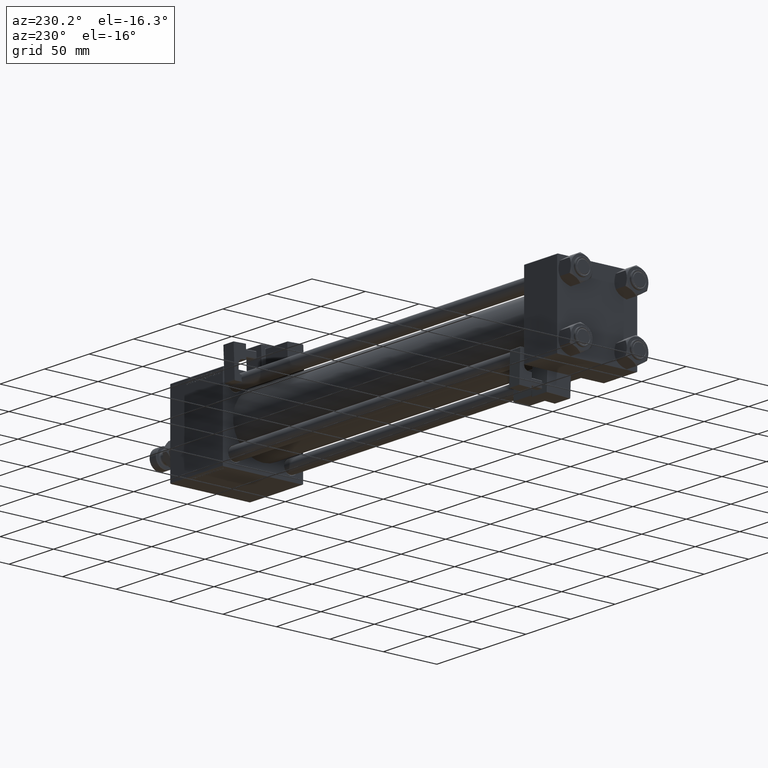
[diagram: clean part render]
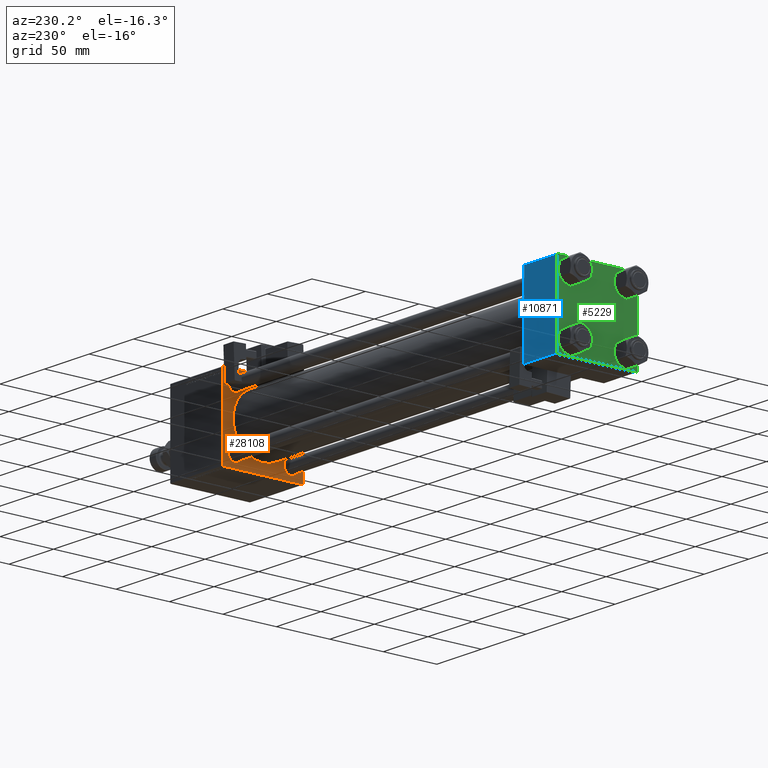
[diagram: same view with three faces highlighted in distinct colors, each labeled with its STEP entity id]
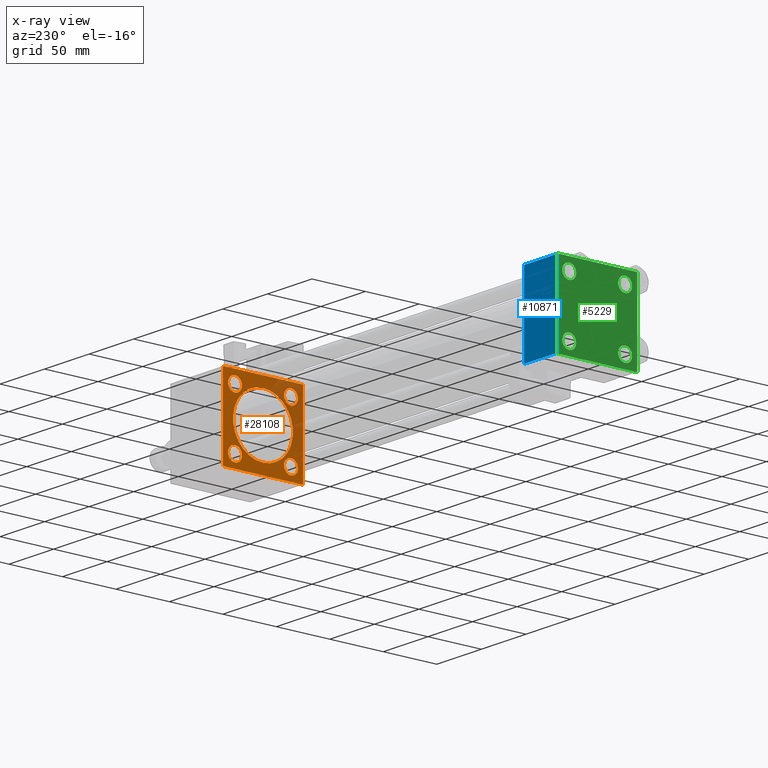
[diagram: x-ray of the same camera — body ghosted, the three highlighted faces saturated]
A machine part, auxiliary view with three faces highlighted in distinct colors.
The next image is the same camera in x-ray (body ghosted, the three faces saturated) — at least one of them is partly hidden behind the body in this view.
Their STEP definitions:

[orange] entity #28108 — the highlighted planar face has unit normal (-1, 0, 0).
#27 = CARTESIAN_POINT ( 'NONE',  ( 375.0000000000000000, 37.50000000000000000, -37.50000000000000000 ) ) ;
#260 = CIRCLE ( 'NONE', #17736, 28.00000000000000000 ) ;
#607 = CARTESIAN_POINT ( 'NONE',  ( 375.0000000000000000, -36.99999999999990052, -37.50000000000000000 ) ) ;
#745 = AXIS2_PLACEMENT_3D ( 'NONE', #33806, #9123, #50539 ) ;
#1143 = EDGE_CURVE ( 'NONE', #10367, #8762, #22745, .T. ) ;
#1572 = FACE_BOUND ( 'NONE', #21722, .T. ) ;
#2196 = CARTESIAN_POINT ( 'NONE',  ( 375.0000000000000000, 26.14999999999999858, -26.15000000000000213 ) ) ;
#2380 = FACE_BOUND ( 'NONE', #26678, .T. ) ;
#2517 = ORIENTED_EDGE ( 'NONE', *, *, #9772, .T. ) ;
#2803 = CARTESIAN_POINT ( 'NONE',  ( 375.0000000000000000, 37.50000000000000000, 37.49999999999999289 ) ) ;
#3143 = DIRECTION ( 'NONE',  ( 0.000000000000000000, 0.7071067811865474617, -0.7071067811865474617 ) ) ;
#4660 = DIRECTION ( 'NONE',  ( 1.000000000000000000, 0.000000000000000000, -0.000000000000000000 ) ) ;
#5742 = CARTESIAN_POINT ( 'NONE',  ( 375.0000000000000000, 26.14999999999999858, 26.15000000000000213 ) ) ;
#6031 = ORIENTED_EDGE ( 'NONE', *, *, #49520, .F. ) ;
#6043 = VERTEX_POINT ( 'NONE', #26173 ) ;
#6058 = AXIS2_PLACEMENT_3D ( 'NONE', #31158, #22936, #30623 ) ;
#6253 = AXIS2_PLACEMENT_3D ( 'NONE', #17229, #8739, #42174 ) ;
#7442 = CIRCLE ( 'NONE', #44208, 6.500000000000008882 ) ;
#7893 = CARTESIAN_POINT ( 'NONE',  ( 375.0000000000000000, -2.602085213965210642E-15, 0.000000000000000000 ) ) ;
#8029 = CIRCLE ( 'NONE', #6253, 6.500000000000015987 ) ;
#8739 = DIRECTION ( 'NONE',  ( 1.000000000000000000, 0.000000000000000000, -0.000000000000000000 ) ) ;
#8762 = VERTEX_POINT ( 'NONE', #24302 ) ;
#8919 = AXIS2_PLACEMENT_3D ( 'NONE', #22287, #39021, #14325 ) ;
#9123 = DIRECTION ( 'NONE',  ( 1.000000000000000000, 0.000000000000000000, -0.000000000000000000 ) ) ;
#9772 = EDGE_CURVE ( 'NONE', #24002, #47184, #260, .T. ) ;
#9791 = ORIENTED_EDGE ( 'NONE', *, *, #23378, .T. ) ;
#10061 = FACE_BOUND ( 'NONE', #12803, .T. ) ;
#10242 = CIRCLE ( 'NONE', #15486, 6.500000000000015987 ) ;
#10311 = DIRECTION ( 'NONE',  ( -0.000000000000000000, 0.7071067811865474617, 0.7071067811865474617 ) ) ;
#10367 = VERTEX_POINT ( 'NONE', #607 ) ;
#10410 = VECTOR ( 'NONE', #36245, 1000.000000000000000 ) ;
#10512 = LINE ( 'NONE', #43410, #38872 ) ;
#11607 = DIRECTION ( 'NONE',  ( 1.000000000000000000, 0.000000000000000000, -0.000000000000000000 ) ) ;
#11711 = CARTESIAN_POINT ( 'NONE',  ( 375.0000000000000000, -26.14999999999999147, -32.65000000000002700 ) ) ;
#11854 = CARTESIAN_POINT ( 'NONE',  ( 375.0000000000000000, -36.99999999999994316, 37.49999999999997868 ) ) ;
#12564 = ORIENTED_EDGE ( 'NONE', *, *, #44474, .T. ) ;
#12704 = CARTESIAN_POINT ( 'NONE',  ( 375.0000000000000000, 26.14999999999999858, -32.65000000000001990 ) ) ;
#12803 = EDGE_LOOP ( 'NONE', ( #24810, #30221 ) ) ;
#13192 = CARTESIAN_POINT ( 'NONE',  ( 375.0000000000000000, 8.269258236473784371E-16, -28.00000000000000000 ) ) ;
#13399 = CARTESIAN_POINT ( 'NONE',  ( 375.0000000000000000, -37.50000000000000000, 37.49999999999997868 ) ) ;
#13593 = EDGE_CURVE ( 'NONE', #41227, #50712, #10512, .T. ) ;
#13900 = FACE_BOUND ( 'NONE', #16496, .T. ) ;
#14080 = DIRECTION ( 'NONE',  ( 0.000000000000000000, -1.000000000000000000, -1.850371707708594316E-16 ) ) ;
#14195 = VECTOR ( 'NONE', #38360, 1000.000000000000000 ) ;
#14325 = DIRECTION ( 'NONE',  ( 0.000000000000000000, 0.000000000000000000, 1.000000000000000000 ) ) ;
#14338 = EDGE_CURVE ( 'NONE', #31263, #50712, #22648, .T. ) ;
#14354 = CARTESIAN_POINT ( 'NONE',  ( 375.0000000000000000, -26.14999999999999147, -19.64999999999999503 ) ) ;
#14705 = FACE_OUTER_BOUND ( 'NONE', #15614, .T. ) ;
#14790 = DIRECTION ( 'NONE',  ( 0.000000000000000000, 0.000000000000000000, 1.000000000000000000 ) ) ;
#14977 = EDGE_CURVE ( 'NONE', #38663, #39060, #27926, .T. ) ;
#15478 = DIRECTION ( 'NONE',  ( 1.000000000000000000, 0.000000000000000000, -0.000000000000000000 ) ) ;
#15486 = AXIS2_PLACEMENT_3D ( 'NONE', #28637, #15478, #40163 ) ;
#15557 = DIRECTION ( 'NONE',  ( 1.000000000000000000, 0.000000000000000000, 0.000000000000000000 ) ) ;
#15614 = EDGE_LOOP ( 'NONE', ( #17398, #53781, #6031, #38833, #40554, #21736, #41858, #46208 ) ) ;
#15979 = DIRECTION ( 'NONE',  ( 0.000000000000000000, 0.000000000000000000, 1.000000000000000000 ) ) ;
#16496 = EDGE_LOOP ( 'NONE', ( #2517, #25565 ) ) ;
#16734 = DIRECTION ( 'NONE',  ( 0.000000000000000000, -1.000000000000000000, 0.000000000000000000 ) ) ;
#17229 = CARTESIAN_POINT ( 'NONE',  ( 375.0000000000000000, -26.14999999999999147, -26.15000000000000924 ) ) ;
#17398 = ORIENTED_EDGE ( 'NONE', *, *, #26907, .T. ) ;
#17576 = AXIS2_PLACEMENT_3D ( 'NONE', #40951, #11607, #24488 ) ;
#17736 = AXIS2_PLACEMENT_3D ( 'NONE', #21823, #42391, #47043 ) ;
#18246 = VECTOR ( 'NONE', #44116, 1000.000000000000114 ) ;
#18588 = LINE ( 'NONE', #13399, #14195 ) ;
#18759 = EDGE_CURVE ( 'NONE', #43875, #45186, #7442, .T. ) ;
#19479 = CARTESIAN_POINT ( 'NONE',  ( 375.0000000000000000, -2.602085213965210642E-15, 28.00000000000000000 ) ) ;
#19587 = VERTEX_POINT ( 'NONE', #14354 ) ;
#19885 = CIRCLE ( 'NONE', #51408, 28.00000000000000000 ) ;
#19995 = CIRCLE ( 'NONE', #745, 6.500000000000015987 ) ;
#20093 = CARTESIAN_POINT ( 'NONE',  ( 375.0000000000000000, 26.14999999999999858, 26.15000000000000213 ) ) ;
#21722 = EDGE_LOOP ( 'NONE', ( #42686, #22268 ) ) ;
#21736 = ORIENTED_EDGE ( 'NONE', *, *, #53788, .T. ) ;
#21823 = CARTESIAN_POINT ( 'NONE',  ( 375.0000000000000000, -2.602085213965210642E-15, 0.000000000000000000 ) ) ;
#22268 = ORIENTED_EDGE ( 'NONE', *, *, #33489, .T. ) ;
#22287 = CARTESIAN_POINT ( 'NONE',  ( 375.0000000000000000, 26.14999999999999858, -26.15000000000000213 ) ) ;
#22648 = LINE ( 'NONE', #52273, #24891 ) ;
#22745 = LINE ( 'NONE', #31242, #18246 ) ;
#22936 = DIRECTION ( 'NONE',  ( -1.000000000000000000, -0.000000000000000000, 0.000000000000000000 ) ) ;
#23378 = EDGE_CURVE ( 'NONE', #48382, #27881, #10242, .T. ) ;
#24002 = VERTEX_POINT ( 'NONE', #19479 ) ;
#24302 = CARTESIAN_POINT ( 'NONE',  ( 375.0000000000000000, -37.50000000000000711, -36.99999999999989342 ) ) ;
#24488 = DIRECTION ( 'NONE',  ( 0.000000000000000000, 0.000000000000000000, 1.000000000000000000 ) ) ;
#24810 = ORIENTED_EDGE ( 'NONE', *, *, #48116, .T. ) ;
#24891 = VECTOR ( 'NONE', #10311, 1000.000000000000114 ) ;
#25201 = ORIENTED_EDGE ( 'NONE', *, *, #26116, .T. ) ;
#25565 = ORIENTED_EDGE ( 'NONE', *, *, #30748, .T. ) ;
#26116 = EDGE_CURVE ( 'NONE', #49632, #19587, #19995, .T. ) ;
#26173 = CARTESIAN_POINT ( 'NONE',  ( 375.0000000000000000, 37.50000000000000000, 36.99999999999993605 ) ) ;
#26678 = EDGE_LOOP ( 'NONE', ( #9791, #12564 ) ) ;
#26907 = EDGE_CURVE ( 'NONE', #39060, #10367, #38648, .T. ) ;
#27881 = VERTEX_POINT ( 'NONE', #40808 ) ;
#27926 = LINE ( 'NONE', #28479, #30180 ) ;
#28108 = ADVANCED_FACE ( 'NONE', ( #2380, #1572, #10061, #51751, #13900, #14705 ), #39128, .T. ) ;
#28325 = CARTESIAN_POINT ( 'NONE',  ( 375.0000000000000000, -37.50000000000000000, 36.99999999999992184 ) ) ;
#28479 = CARTESIAN_POINT ( 'NONE',  ( 375.0000000000000000, 37.25000000000022027, -37.24999999999970868 ) ) ;
#28637 = CARTESIAN_POINT ( 'NONE',  ( 375.0000000000000000, -26.14999999999999147, 26.15000000000000924 ) ) ;
#29520 = CARTESIAN_POINT ( 'NONE',  ( 375.0000000000000000, 36.99999999999994316, -37.50000000000000000 ) ) ;
#29664 = DIRECTION ( 'NONE',  ( 1.000000000000000000, 0.000000000000000000, -0.000000000000000000 ) ) ;
#30180 = VECTOR ( 'NONE', #53706, 1000.000000000000000 ) ;
#30221 = ORIENTED_EDGE ( 'NONE', *, *, #46075, .T. ) ;
#30409 = DIRECTION ( 'NONE',  ( 0.000000000000000000, 0.000000000000000000, 1.000000000000000000 ) ) ;
#30623 = DIRECTION ( 'NONE',  ( 0.000000000000000000, 0.000000000000000000, 1.000000000000000000 ) ) ;
#30748 = EDGE_CURVE ( 'NONE', #47184, #24002, #19885, .T. ) ;
#31056 = VECTOR ( 'NONE', #3143, 1000.000000000000114 ) ;
#31118 = VERTEX_POINT ( 'NONE', #33583 ) ;
#31158 = CARTESIAN_POINT ( 'NONE',  ( 375.0000000000000000, 0.000000000000000000, 0.000000000000000000 ) ) ;
#31242 = CARTESIAN_POINT ( 'NONE',  ( 375.0000000000000000, -37.24999999999995026, -37.24999999999995026 ) ) ;
#31263 = VERTEX_POINT ( 'NONE', #28325 ) ;
#33466 = CIRCLE ( 'NONE', #8919, 6.500000000000015987 ) ;
#33489 = EDGE_CURVE ( 'NONE', #45186, #43875, #47003, .T. ) ;
#33583 = CARTESIAN_POINT ( 'NONE',  ( 375.0000000000000000, 26.14999999999999858, -19.64999999999998792 ) ) ;
#33806 = CARTESIAN_POINT ( 'NONE',  ( 375.0000000000000000, -26.14999999999999147, -26.15000000000000924 ) ) ;
#34884 = CARTESIAN_POINT ( 'NONE',  ( 375.0000000000000000, 37.50000000000000000, -36.99999999999993605 ) ) ;
#36174 = DIRECTION ( 'NONE',  ( 1.000000000000000000, 0.000000000000000000, -0.000000000000000000 ) ) ;
#36245 = DIRECTION ( 'NONE',  ( 0.000000000000000000, 0.000000000000000000, -1.000000000000000000 ) ) ;
#36475 = VERTEX_POINT ( 'NONE', #12704 ) ;
#36650 = CARTESIAN_POINT ( 'NONE',  ( 375.0000000000000000, 26.14999999999999858, 19.64999999999999147 ) ) ;
#37820 = EDGE_CURVE ( 'NONE', #6043, #38663, #49954, .T. ) ;
#38360 = DIRECTION ( 'NONE',  ( 0.000000000000000000, -9.251858538542972814E-17, -1.000000000000000000 ) ) ;
#38648 = LINE ( 'NONE', #27, #48014 ) ;
#38663 = VERTEX_POINT ( 'NONE', #34884 ) ;
#38833 = ORIENTED_EDGE ( 'NONE', *, *, #14338, .T. ) ;
#38872 = VECTOR ( 'NONE', #14080, 1000.000000000000000 ) ;
#39021 = DIRECTION ( 'NONE',  ( 1.000000000000000000, 0.000000000000000000, -0.000000000000000000 ) ) ;
#39060 = VERTEX_POINT ( 'NONE', #29520 ) ;
#39128 = PLANE ( 'NONE',  #6058 ) ;
#40163 = DIRECTION ( 'NONE',  ( 0.000000000000000000, 0.000000000000000000, 1.000000000000000000 ) ) ;
#40554 = ORIENTED_EDGE ( 'NONE', *, *, #13593, .F. ) ;
#40808 = CARTESIAN_POINT ( 'NONE',  ( 375.0000000000000000, -26.14999999999999147, 19.64999999999999147 ) ) ;
#40856 = CARTESIAN_POINT ( 'NONE',  ( 375.0000000000000000, 36.99999999999994316, 37.49999999999999289 ) ) ;
#40951 = CARTESIAN_POINT ( 'NONE',  ( 375.0000000000000000, -26.14999999999999147, 26.15000000000000924 ) ) ;
#41227 = VERTEX_POINT ( 'NONE', #40856 ) ;
#41858 = ORIENTED_EDGE ( 'NONE', *, *, #37820, .T. ) ;
#42174 = DIRECTION ( 'NONE',  ( 0.000000000000000000, 0.000000000000000000, 1.000000000000000000 ) ) ;
#42187 = CIRCLE ( 'NONE', #17576, 6.500000000000015987 ) ;
#42271 = CARTESIAN_POINT ( 'NONE',  ( 375.0000000000000000, 26.14999999999999858, 32.65000000000001990 ) ) ;
#42391 = DIRECTION ( 'NONE',  ( 1.000000000000000000, 0.000000000000000000, 0.000000000000000000 ) ) ;
#42686 = ORIENTED_EDGE ( 'NONE', *, *, #18759, .T. ) ;
#43410 = CARTESIAN_POINT ( 'NONE',  ( 375.0000000000000000, 37.50000000000000000, 37.49999999999999289 ) ) ;
#43875 = VERTEX_POINT ( 'NONE', #42271 ) ;
#44116 = DIRECTION ( 'NONE',  ( 0.000000000000000000, -0.7071067811865474617, 0.7071067811865474617 ) ) ;
#44208 = AXIS2_PLACEMENT_3D ( 'NONE', #20093, #29664, #15979 ) ;
#44474 = EDGE_CURVE ( 'NONE', #27881, #48382, #42187, .T. ) ;
#44715 = CIRCLE ( 'NONE', #46485, 6.500000000000015987 ) ;
#44882 = DIRECTION ( 'NONE',  ( 0.000000000000000000, 0.000000000000000000, -1.000000000000000000 ) ) ;
#45186 = VERTEX_POINT ( 'NONE', #36650 ) ;
#45347 = CARTESIAN_POINT ( 'NONE',  ( 375.0000000000000000, 37.24999999999996447, 37.24999999999996447 ) ) ;
#46075 = EDGE_CURVE ( 'NONE', #36475, #31118, #44715, .T. ) ;
#46208 = ORIENTED_EDGE ( 'NONE', *, *, #14977, .T. ) ;
#46485 = AXIS2_PLACEMENT_3D ( 'NONE', #2196, #36174, #14790 ) ;
#47003 = CIRCLE ( 'NONE', #47903, 6.500000000000008882 ) ;
#47043 = DIRECTION ( 'NONE',  ( 0.000000000000000000, 0.000000000000000000, -1.000000000000000000 ) ) ;
#47184 = VERTEX_POINT ( 'NONE', #13192 ) ;
#47323 = EDGE_CURVE ( 'NONE', #19587, #49632, #8029, .T. ) ;
#47719 = CARTESIAN_POINT ( 'NONE',  ( 375.0000000000000000, -26.14999999999999147, 32.65000000000003411 ) ) ;
#47903 = AXIS2_PLACEMENT_3D ( 'NONE', #5742, #4660, #30409 ) ;
#47919 = ORIENTED_EDGE ( 'NONE', *, *, #47323, .T. ) ;
#48014 = VECTOR ( 'NONE', #16734, 1000.000000000000000 ) ;
#48116 = EDGE_CURVE ( 'NONE', #31118, #36475, #33466, .T. ) ;
#48382 = VERTEX_POINT ( 'NONE', #47719 ) ;
#49520 = EDGE_CURVE ( 'NONE', #31263, #8762, #18588, .T. ) ;
#49632 = VERTEX_POINT ( 'NONE', #11711 ) ;
#49954 = LINE ( 'NONE', #2803, #10410 ) ;
#50539 = DIRECTION ( 'NONE',  ( 0.000000000000000000, 0.000000000000000000, 1.000000000000000000 ) ) ;
#50712 = VERTEX_POINT ( 'NONE', #11854 ) ;
#51408 = AXIS2_PLACEMENT_3D ( 'NONE', #7893, #15557, #44882 ) ;
#51751 = FACE_BOUND ( 'NONE', #53680, .T. ) ;
#52273 = CARTESIAN_POINT ( 'NONE',  ( 375.0000000000000000, -37.24999999999995737, 37.24999999999995737 ) ) ;
#53051 = LINE ( 'NONE', #45347, #31056 ) ;
#53680 = EDGE_LOOP ( 'NONE', ( #47919, #25201 ) ) ;
#53706 = DIRECTION ( 'NONE',  ( -0.000000000000000000, -0.7071067811865426878, -0.7071067811865524577 ) ) ;
#53781 = ORIENTED_EDGE ( 'NONE', *, *, #1143, .T. ) ;
#53788 = EDGE_CURVE ( 'NONE', #41227, #6043, #53051, .T. ) ;

[blue] entity #10871 — the highlighted planar face has unit normal (0, 1, 0).
#23 = VECTOR ( 'NONE', #39372, 1000.000000000000000 ) ;
#1290 = EDGE_CURVE ( 'NONE', #37489, #32717, #22885, .T. ) ;
#2083 = CARTESIAN_POINT ( 'NONE',  ( 37.00000000000000000, 37.49999999999999289, -36.99999999999998579 ) ) ;
#3069 = LINE ( 'NONE', #24440, #5170 ) ;
#3207 = VECTOR ( 'NONE', #31453, 1000.000000000000000 ) ;
#4082 = ORIENTED_EDGE ( 'NONE', *, *, #23066, .T. ) ;
#4243 = VECTOR ( 'NONE', #35506, 1000.000000000000000 ) ;
#5170 = VECTOR ( 'NONE', #12378, 1000.000000000000000 ) ;
#5943 = EDGE_LOOP ( 'NONE', ( #26218, #18892, #39948, #4082 ) ) ;
#10351 = LINE ( 'NONE', #35576, #3207 ) ;
#10763 = AXIS2_PLACEMENT_3D ( 'NONE', #29037, #24915, #41642 ) ;
#10871 = ADVANCED_FACE ( 'NONE', ( #12848 ), #49889, .T. ) ;
#11409 = VERTEX_POINT ( 'NONE', #43325 ) ;
#12378 = DIRECTION ( 'NONE',  ( 0.000000000000000000, 0.000000000000000000, -1.000000000000000000 ) ) ;
#12848 = FACE_OUTER_BOUND ( 'NONE', #5943, .T. ) ;
#18892 = ORIENTED_EDGE ( 'NONE', *, *, #40115, .T. ) ;
#22634 = LINE ( 'NONE', #2083, #23 ) ;
#22885 = LINE ( 'NONE', #26742, #4243 ) ;
#23066 = EDGE_CURVE ( 'NONE', #11409, #37489, #10351, .T. ) ;
#24440 = CARTESIAN_POINT ( 'NONE',  ( 0.000000000000000000, 37.49999999999999289, 37.50000000000000000 ) ) ;
#24915 = DIRECTION ( 'NONE',  ( -0.000000000000000000, 1.000000000000000000, 0.000000000000000000 ) ) ;
#26218 = ORIENTED_EDGE ( 'NONE', *, *, #1290, .T. ) ;
#26742 = CARTESIAN_POINT ( 'NONE',  ( 37.00000000000000000, 37.49999999999999289, 37.50000000000000000 ) ) ;
#29037 = CARTESIAN_POINT ( 'NONE',  ( 37.00000000000000000, 37.49999999999999289, 37.50000000000000000 ) ) ;
#31453 = DIRECTION ( 'NONE',  ( 1.000000000000000000, 0.000000000000000000, 0.000000000000000000 ) ) ;
#32717 = VERTEX_POINT ( 'NONE', #45642 ) ;
#35506 = DIRECTION ( 'NONE',  ( 0.000000000000000000, 0.000000000000000000, -1.000000000000000000 ) ) ;
#35576 = CARTESIAN_POINT ( 'NONE',  ( 37.00000000000000000, 37.49999999999999289, 37.00000000000000000 ) ) ;
#37489 = VERTEX_POINT ( 'NONE', #46153 ) ;
#37799 = VERTEX_POINT ( 'NONE', #40089 ) ;
#37837 = EDGE_CURVE ( 'NONE', #11409, #37799, #3069, .T. ) ;
#39372 = DIRECTION ( 'NONE',  ( -1.000000000000000000, 0.000000000000000000, 0.000000000000000000 ) ) ;
#39948 = ORIENTED_EDGE ( 'NONE', *, *, #37837, .F. ) ;
#40089 = CARTESIAN_POINT ( 'NONE',  ( 0.000000000000000000, 37.49999999999999289, -36.99999999999998579 ) ) ;
#40115 = EDGE_CURVE ( 'NONE', #32717, #37799, #22634, .T. ) ;
#41642 = DIRECTION ( 'NONE',  ( 0.000000000000000000, -0.000000000000000000, 1.000000000000000000 ) ) ;
#43325 = CARTESIAN_POINT ( 'NONE',  ( 0.000000000000000000, 37.49999999999999289, 37.00000000000000000 ) ) ;
#45642 = CARTESIAN_POINT ( 'NONE',  ( 37.00000000000000000, 37.49999999999999289, -36.99999999999998579 ) ) ;
#46153 = CARTESIAN_POINT ( 'NONE',  ( 37.00000000000000000, 37.49999999999999289, 37.00000000000000000 ) ) ;
#49889 = PLANE ( 'NONE',  #10763 ) ;

[green] entity #5229 — the highlighted planar face has unit normal (-1, 0, 0).
#93 = CARTESIAN_POINT ( 'NONE',  ( 0.000000000000000000, 37.24999999999998579, -37.24999999999998579 ) ) ;
#332 = DIRECTION ( 'NONE',  ( 1.000000000000000000, -0.000000000000000000, 0.000000000000000000 ) ) ;
#437 = CIRCLE ( 'NONE', #52054, 6.500000000000015987 ) ;
#610 = VERTEX_POINT ( 'NONE', #48104 ) ;
#1952 = VERTEX_POINT ( 'NONE', #23299 ) ;
#2087 = EDGE_CURVE ( 'NONE', #25575, #38218, #9013, .T. ) ;
#2236 = AXIS2_PLACEMENT_3D ( 'NONE', #35419, #33867, #37981 ) ;
#2682 = DIRECTION ( 'NONE',  ( 1.000000000000000000, -0.000000000000000000, 0.000000000000000000 ) ) ;
#2871 = DIRECTION ( 'NONE',  ( 1.000000000000000000, -0.000000000000000000, 0.000000000000000000 ) ) ;
#3069 = LINE ( 'NONE', #24440, #5170 ) ;
#3521 = AXIS2_PLACEMENT_3D ( 'NONE', #31471, #2682, #35594 ) ;
#3591 = ORIENTED_EDGE ( 'NONE', *, *, #32915, .T. ) ;
#3899 = ORIENTED_EDGE ( 'NONE', *, *, #18275, .T. ) ;
#4457 = EDGE_LOOP ( 'NONE', ( #50734, #45091 ) ) ;
#4480 = VERTEX_POINT ( 'NONE', #31416 ) ;
#4541 = ORIENTED_EDGE ( 'NONE', *, *, #49073, .T. ) ;
#5107 = FACE_BOUND ( 'NONE', #15487, .T. ) ;
#5170 = VECTOR ( 'NONE', #12378, 1000.000000000000000 ) ;
#5229 = ADVANCED_FACE ( 'NONE', ( #42661, #5107, #13600, #13869, #47316 ), #30058, .T. ) ;
#5265 = DIRECTION ( 'NONE',  ( -0.000000000000000000, -0.7071067811865474617, -0.7071067811865474617 ) ) ;
#5381 = VERTEX_POINT ( 'NONE', #20025 ) ;
#6000 = DIRECTION ( 'NONE',  ( 1.000000000000000000, -0.000000000000000000, 0.000000000000000000 ) ) ;
#6530 = VECTOR ( 'NONE', #5265, 1000.000000000000114 ) ;
#6584 = CARTESIAN_POINT ( 'NONE',  ( 0.000000000000000000, 26.14999999999999858, -19.64999999999998792 ) ) ;
#6646 = DIRECTION ( 'NONE',  ( 0.000000000000000000, 9.251858538542971581E-17, -1.000000000000000000 ) ) ;
#6721 = AXIS2_PLACEMENT_3D ( 'NONE', #7097, #27666, #15048 ) ;
#7097 = CARTESIAN_POINT ( 'NONE',  ( 0.000000000000000000, -26.14999999999999147, -26.15000000000000924 ) ) ;
#7527 = DIRECTION ( 'NONE',  ( 0.000000000000000000, 0.000000000000000000, 1.000000000000000000 ) ) ;
#8310 = LINE ( 'NONE', #93, #6530 ) ;
#8784 = CARTESIAN_POINT ( 'NONE',  ( 0.000000000000000000, -26.14999999999999147, 19.64999999999999147 ) ) ;
#9013 = LINE ( 'NONE', #46571, #20919 ) ;
#9285 = CARTESIAN_POINT ( 'NONE',  ( 0.000000000000000000, 26.14999999999999858, 32.65000000000002700 ) ) ;
#9440 = ORIENTED_EDGE ( 'NONE', *, *, #2087, .T. ) ;
#9592 = AXIS2_PLACEMENT_3D ( 'NONE', #24724, #41722, #45562 ) ;
#11409 = VERTEX_POINT ( 'NONE', #43325 ) ;
#11680 = VERTEX_POINT ( 'NONE', #9285 ) ;
#12378 = DIRECTION ( 'NONE',  ( 0.000000000000000000, 0.000000000000000000, -1.000000000000000000 ) ) ;
#12626 = VERTEX_POINT ( 'NONE', #28714 ) ;
#13243 = VERTEX_POINT ( 'NONE', #27702 ) ;
#13600 = FACE_BOUND ( 'NONE', #4457, .T. ) ;
#13869 = FACE_BOUND ( 'NONE', #15359, .T. ) ;
#13929 = DIRECTION ( 'NONE',  ( 0.000000000000000000, -1.000000000000000000, -9.251858538542972814E-17 ) ) ;
#14516 = VERTEX_POINT ( 'NONE', #36075 ) ;
#15048 = DIRECTION ( 'NONE',  ( 0.000000000000000000, 0.000000000000000000, 1.000000000000000000 ) ) ;
#15359 = EDGE_LOOP ( 'NONE', ( #34623, #4541 ) ) ;
#15487 = EDGE_LOOP ( 'NONE', ( #30615, #32716 ) ) ;
#16077 = DIRECTION ( 'NONE',  ( 0.000000000000000000, 0.7071067811865474617, -0.7071067811865474617 ) ) ;
#16180 = VERTEX_POINT ( 'NONE', #17855 ) ;
#17855 = CARTESIAN_POINT ( 'NONE',  ( 0.000000000000000000, 36.99999999999999289, 37.50000000000000000 ) ) ;
#18239 = EDGE_CURVE ( 'NONE', #1952, #14516, #25566, .T. ) ;
#18275 = EDGE_CURVE ( 'NONE', #37799, #25575, #8310, .T. ) ;
#19292 = EDGE_CURVE ( 'NONE', #4480, #34411, #29364, .T. ) ;
#20025 = CARTESIAN_POINT ( 'NONE',  ( 0.000000000000000000, 26.14999999999999858, -32.65000000000001990 ) ) ;
#20525 = EDGE_CURVE ( 'NONE', #5381, #48431, #48652, .T. ) ;
#20919 = VECTOR ( 'NONE', #13929, 1000.000000000000000 ) ;
#22632 = DIRECTION ( 'NONE',  ( -0.000000000000000000, 0.000000000000000000, 1.000000000000000000 ) ) ;
#22725 = CARTESIAN_POINT ( 'NONE',  ( 0.000000000000000000, 26.14999999999999858, 26.15000000000000213 ) ) ;
#23010 = EDGE_LOOP ( 'NONE', ( #53337, #37622 ) ) ;
#23299 = CARTESIAN_POINT ( 'NONE',  ( 0.000000000000000000, -37.50000000000000711, 36.99999999999999289 ) ) ;
#23356 = CIRCLE ( 'NONE', #6721, 6.500000000000015987 ) ;
#23387 = CARTESIAN_POINT ( 'NONE',  ( 0.000000000000000000, -37.24999999999975842, -37.25000000000027001 ) ) ;
#23477 = CARTESIAN_POINT ( 'NONE',  ( 0.000000000000000000, 37.49999999999999289, 37.50000000000000000 ) ) ;
#23755 = EDGE_CURVE ( 'NONE', #32814, #12626, #23356, .T. ) ;
#24440 = CARTESIAN_POINT ( 'NONE',  ( 0.000000000000000000, 37.49999999999999289, 37.50000000000000000 ) ) ;
#24724 = CARTESIAN_POINT ( 'NONE',  ( 0.000000000000000000, -26.14999999999999147, 26.15000000000000924 ) ) ;
#25067 = EDGE_CURVE ( 'NONE', #11680, #610, #40073, .T. ) ;
#25566 = LINE ( 'NONE', #45851, #33701 ) ;
#25575 = VERTEX_POINT ( 'NONE', #45390 ) ;
#25954 = VECTOR ( 'NONE', #45034, 1000.000000000000000 ) ;
#26494 = DIRECTION ( 'NONE',  ( -1.000000000000000000, 0.000000000000000000, -0.000000000000000000 ) ) ;
#27163 = CIRCLE ( 'NONE', #3521, 6.500000000000015987 ) ;
#27325 = DIRECTION ( 'NONE',  ( 0.000000000000000000, -1.000000000000000000, -9.251858538542971581E-17 ) ) ;
#27666 = DIRECTION ( 'NONE',  ( 1.000000000000000000, -0.000000000000000000, 0.000000000000000000 ) ) ;
#27702 = CARTESIAN_POINT ( 'NONE',  ( 0.000000000000000000, -37.50000000000000000, -37.00000000000003553 ) ) ;
#28714 = CARTESIAN_POINT ( 'NONE',  ( 0.000000000000000000, -26.14999999999999147, -32.65000000000002700 ) ) ;
#29364 = CIRCLE ( 'NONE', #52108, 6.500000000000023093 ) ;
#30058 = PLANE ( 'NONE',  #42970 ) ;
#30418 = DIRECTION ( 'NONE',  ( 1.000000000000000000, -0.000000000000000000, 0.000000000000000000 ) ) ;
#30615 = ORIENTED_EDGE ( 'NONE', *, *, #23755, .T. ) ;
#31156 = LINE ( 'NONE', #23477, #46183 ) ;
#31416 = CARTESIAN_POINT ( 'NONE',  ( 0.000000000000000000, -26.14999999999999147, 32.65000000000003411 ) ) ;
#31471 = CARTESIAN_POINT ( 'NONE',  ( 0.000000000000000000, 26.14999999999999858, -26.15000000000000213 ) ) ;
#31707 = CARTESIAN_POINT ( 'NONE',  ( 0.000000000000000000, 37.24999999999999289, 37.24999999999999289 ) ) ;
#32716 = ORIENTED_EDGE ( 'NONE', *, *, #53881, .T. ) ;
#32814 = VERTEX_POINT ( 'NONE', #39043 ) ;
#32915 = EDGE_CURVE ( 'NONE', #38218, #13243, #44757, .T. ) ;
#33639 = ORIENTED_EDGE ( 'NONE', *, *, #37837, .T. ) ;
#33701 = VECTOR ( 'NONE', #46665, 1000.000000000000114 ) ;
#33867 = DIRECTION ( 'NONE',  ( 1.000000000000000000, -0.000000000000000000, 0.000000000000000000 ) ) ;
#34411 = VERTEX_POINT ( 'NONE', #8784 ) ;
#34623 = ORIENTED_EDGE ( 'NONE', *, *, #25067, .T. ) ;
#34890 = EDGE_CURVE ( 'NONE', #16180, #14516, #31156, .T. ) ;
#35419 = CARTESIAN_POINT ( 'NONE',  ( 0.000000000000000000, 26.14999999999999858, -26.15000000000000213 ) ) ;
#35594 = DIRECTION ( 'NONE',  ( 0.000000000000000000, 0.000000000000000000, 1.000000000000000000 ) ) ;
#35977 = LINE ( 'NONE', #45283, #50967 ) ;
#36075 = CARTESIAN_POINT ( 'NONE',  ( 0.000000000000000000, -37.00000000000000711, 37.49999999999999289 ) ) ;
#37622 = ORIENTED_EDGE ( 'NONE', *, *, #39175, .T. ) ;
#37799 = VERTEX_POINT ( 'NONE', #40089 ) ;
#37837 = EDGE_CURVE ( 'NONE', #11409, #37799, #3069, .T. ) ;
#37981 = DIRECTION ( 'NONE',  ( 0.000000000000000000, 0.000000000000000000, 1.000000000000000000 ) ) ;
#38218 = VERTEX_POINT ( 'NONE', #43791 ) ;
#38654 = DIRECTION ( 'NONE',  ( 0.000000000000000000, 0.000000000000000000, 1.000000000000000000 ) ) ;
#39043 = CARTESIAN_POINT ( 'NONE',  ( 0.000000000000000000, -26.14999999999999147, -19.64999999999999503 ) ) ;
#39175 = EDGE_CURVE ( 'NONE', #34411, #4480, #40234, .T. ) ;
#40073 = CIRCLE ( 'NONE', #49718, 6.500000000000023093 ) ;
#40089 = CARTESIAN_POINT ( 'NONE',  ( 0.000000000000000000, 37.49999999999999289, -36.99999999999998579 ) ) ;
#40234 = CIRCLE ( 'NONE', #9592, 6.500000000000023093 ) ;
#40509 = EDGE_CURVE ( 'NONE', #48431, #5381, #27163, .T. ) ;
#40620 = ORIENTED_EDGE ( 'NONE', *, *, #34890, .F. ) ;
#40991 = ORIENTED_EDGE ( 'NONE', *, *, #18239, .T. ) ;
#41365 = AXIS2_PLACEMENT_3D ( 'NONE', #41720, #332, #46100 ) ;
#41493 = EDGE_LOOP ( 'NONE', ( #33639, #3899, #9440, #3591, #47122, #40991, #40620, #53922 ) ) ;
#41720 = CARTESIAN_POINT ( 'NONE',  ( 0.000000000000000000, 26.14999999999999858, 26.15000000000000213 ) ) ;
#41722 = DIRECTION ( 'NONE',  ( 1.000000000000000000, -0.000000000000000000, 0.000000000000000000 ) ) ;
#42661 = FACE_BOUND ( 'NONE', #23010, .T. ) ;
#42970 = AXIS2_PLACEMENT_3D ( 'NONE', #50908, #26494, #22632 ) ;
#43325 = CARTESIAN_POINT ( 'NONE',  ( 0.000000000000000000, 37.49999999999999289, 37.00000000000000000 ) ) ;
#43791 = CARTESIAN_POINT ( 'NONE',  ( 0.000000000000000000, -37.00000000000002132, -37.50000000000000711 ) ) ;
#44757 = LINE ( 'NONE', #23387, #25954 ) ;
#45034 = DIRECTION ( 'NONE',  ( 0.000000000000000000, -0.7071067811865524577, 0.7071067811865426878 ) ) ;
#45091 = ORIENTED_EDGE ( 'NONE', *, *, #20525, .T. ) ;
#45103 = DIRECTION ( 'NONE',  ( 0.000000000000000000, 0.000000000000000000, 1.000000000000000000 ) ) ;
#45209 = EDGE_CURVE ( 'NONE', #16180, #11409, #52562, .T. ) ;
#45283 = CARTESIAN_POINT ( 'NONE',  ( 0.000000000000000000, -37.50000000000000711, 37.49999999999999289 ) ) ;
#45390 = CARTESIAN_POINT ( 'NONE',  ( 0.000000000000000000, 36.99999999999997868, -37.50000000000000000 ) ) ;
#45562 = DIRECTION ( 'NONE',  ( 0.000000000000000000, 0.000000000000000000, 1.000000000000000000 ) ) ;
#45851 = CARTESIAN_POINT ( 'NONE',  ( -0.000000000000000000, -37.25000000000000000, 37.25000000000000000 ) ) ;
#46100 = DIRECTION ( 'NONE',  ( 0.000000000000000000, 0.000000000000000000, 1.000000000000000000 ) ) ;
#46183 = VECTOR ( 'NONE', #27325, 1000.000000000000000 ) ;
#46571 = CARTESIAN_POINT ( 'NONE',  ( 0.000000000000000000, 37.49999999999999289, -37.50000000000000000 ) ) ;
#46665 = DIRECTION ( 'NONE',  ( -0.000000000000000000, 0.7071067811865474617, 0.7071067811865474617 ) ) ;
#47122 = ORIENTED_EDGE ( 'NONE', *, *, #48204, .F. ) ;
#47316 = FACE_OUTER_BOUND ( 'NONE', #41493, .T. ) ;
#47669 = CARTESIAN_POINT ( 'NONE',  ( 0.000000000000000000, -26.14999999999999147, 26.15000000000000924 ) ) ;
#48104 = CARTESIAN_POINT ( 'NONE',  ( 0.000000000000000000, 26.14999999999999858, 19.64999999999998437 ) ) ;
#48204 = EDGE_CURVE ( 'NONE', #1952, #13243, #35977, .T. ) ;
#48366 = CIRCLE ( 'NONE', #41365, 6.500000000000023093 ) ;
#48431 = VERTEX_POINT ( 'NONE', #6584 ) ;
#48652 = CIRCLE ( 'NONE', #2236, 6.500000000000015987 ) ;
#49073 = EDGE_CURVE ( 'NONE', #610, #11680, #48366, .T. ) ;
#49718 = AXIS2_PLACEMENT_3D ( 'NONE', #22725, #30418, #38654 ) ;
#50734 = ORIENTED_EDGE ( 'NONE', *, *, #40509, .T. ) ;
#50908 = CARTESIAN_POINT ( 'NONE',  ( 0.000000000000000000, 0.000000000000000000, 0.000000000000000000 ) ) ;
#50967 = VECTOR ( 'NONE', #6646, 1000.000000000000000 ) ;
#52054 = AXIS2_PLACEMENT_3D ( 'NONE', #52775, #2871, #7527 ) ;
#52108 = AXIS2_PLACEMENT_3D ( 'NONE', #47669, #6000, #45103 ) ;
#52562 = LINE ( 'NONE', #31707, #53592 ) ;
#52775 = CARTESIAN_POINT ( 'NONE',  ( 0.000000000000000000, -26.14999999999999147, -26.15000000000000924 ) ) ;
#53337 = ORIENTED_EDGE ( 'NONE', *, *, #19292, .T. ) ;
#53592 = VECTOR ( 'NONE', #16077, 1000.000000000000114 ) ;
#53881 = EDGE_CURVE ( 'NONE', #12626, #32814, #437, .T. ) ;
#53922 = ORIENTED_EDGE ( 'NONE', *, *, #45209, .T. ) ;